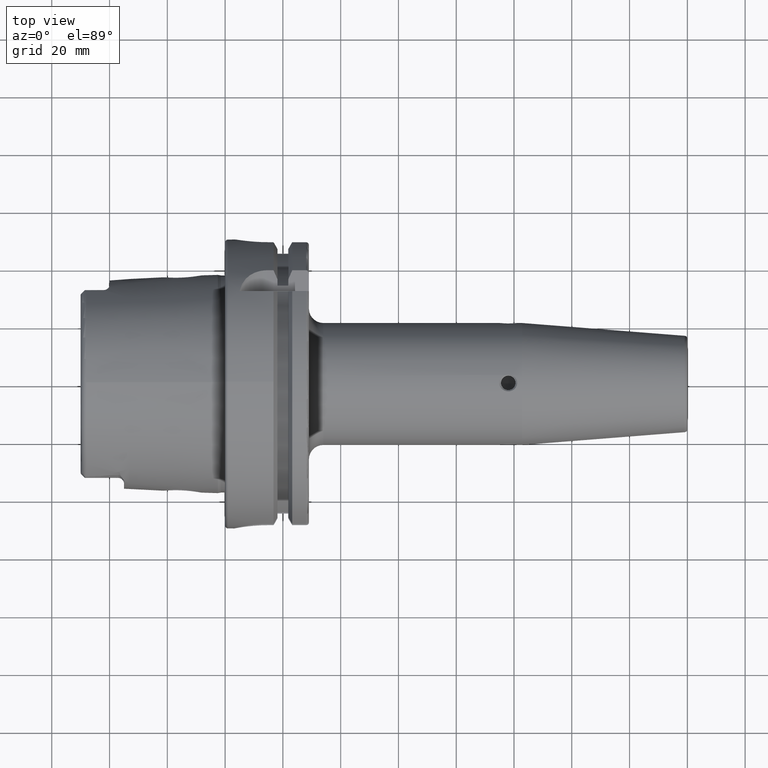
[diagram: clean part render]
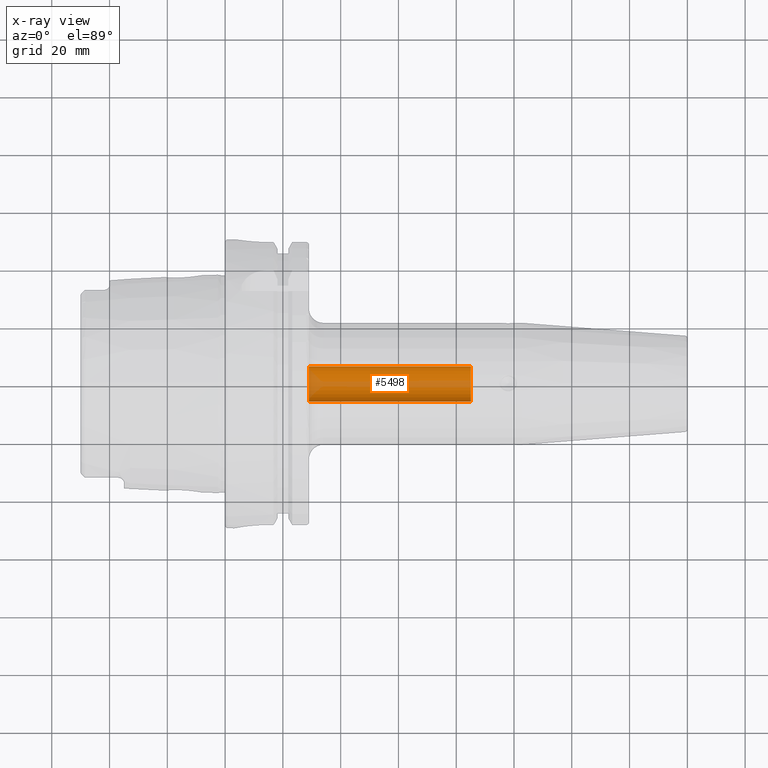
[diagram: x-ray — body ghosted, one internal face saturated and labeled with its STEP entity id]
A machine part, top view, then the same camera in x-ray: the body is ghosted and one INTERNAL B-rep face — a face not visible from any outside direction — is saturated and labeled: STEP entity #5498.
In plain terms, the highlighted cylindrical surface (edge-blend (fillet) strip) has radius 6.1097 mm, axis along (1, 0, 0).
Its self-contained STEP definition (entity closure, byte-faithful):
#1682=CARTESIAN_POINT('',(2.9E1,0.E0,0.E0));
#1683=DIRECTION('',(1.E0,0.E0,0.E0));
#1684=DIRECTION('',(0.E0,-1.E0,0.E0));
#1685=AXIS2_PLACEMENT_3D('',#1682,#1683,#1684);
#2082=DIRECTION('',(1.E0,0.E0,0.E0));
#2083=VECTOR('',#2082,5.606866604051E1);
#2084=CARTESIAN_POINT('',(2.9E1,6.109697137796E0,0.E0));
#2085=LINE('',#2084,#2083);
#2086=DIRECTION('',(1.E0,0.E0,0.E0));
#2087=VECTOR('',#2086,5.606866604051E1);
#2088=CARTESIAN_POINT('',(2.9E1,-6.109697137796E0,0.E0));
#2089=LINE('',#2088,#2087);
#2098=CARTESIAN_POINT('',(8.506866604051E1,0.E0,0.E0));
#2099=DIRECTION('',(-1.E0,0.E0,0.E0));
#2100=DIRECTION('',(0.E0,1.E0,0.E0));
#2101=AXIS2_PLACEMENT_3D('',#2098,#2099,#2100);
#3155=CARTESIAN_POINT('',(8.506866604051E1,6.109697137796E0,0.E0));
#3157=VERTEX_POINT('',#3155);
#3183=CARTESIAN_POINT('',(8.506866604051E1,-6.109697137796E0,0.E0));
#3185=VERTEX_POINT('',#3183);
#3215=CARTESIAN_POINT('',(2.9E1,6.109697137796E0,0.E0));
#3216=CARTESIAN_POINT('',(2.9E1,-6.109697137796E0,0.E0));
#3217=VERTEX_POINT('',#3215);
#3218=VERTEX_POINT('',#3216);
#5486=CARTESIAN_POINT('',(2.245E1,0.E0,0.E0));
#5487=DIRECTION('',(1.E0,0.E0,0.E0));
#5488=DIRECTION('',(0.E0,-1.E0,0.E0));
#5489=AXIS2_PLACEMENT_3D('',#5486,#5487,#5488);
#5490=CYLINDRICAL_SURFACE('',#5489,6.109697137796E0);
#5491=ORIENTED_EDGE('',*,*,#5057,.T.);
#5492=ORIENTED_EDGE('',*,*,#5481,.T.);
#5494=ORIENTED_EDGE('',*,*,#5493,.T.);
#5495=ORIENTED_EDGE('',*,*,#5477,.F.);
#5496=EDGE_LOOP('',(#5491,#5492,#5494,#5495));
#5497=FACE_OUTER_BOUND('',#5496,.F.);
#5498=ADVANCED_FACE('',(#5497),#5490,.F.);
#1686=CIRCLE('',#1685,6.109697137796E0);
#2102=CIRCLE('',#2101,6.109697137796E0);
#5057=EDGE_CURVE('',#3218,#3217,#1686,.T.);
#5477=EDGE_CURVE('',#3218,#3185,#2089,.T.);
#5481=EDGE_CURVE('',#3217,#3157,#2085,.T.);
#5493=EDGE_CURVE('',#3157,#3185,#2102,.T.);